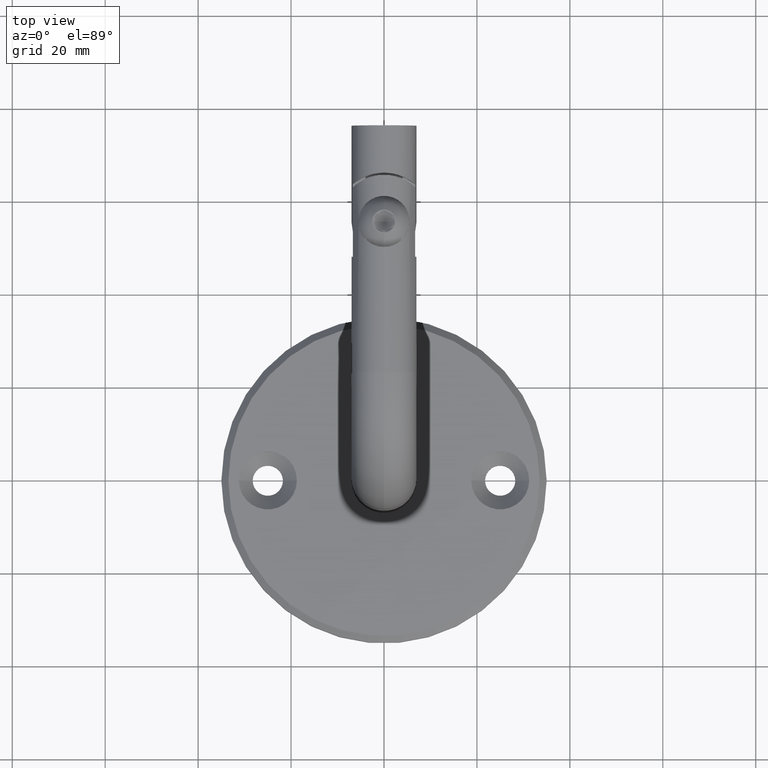
[diagram: clean part render]
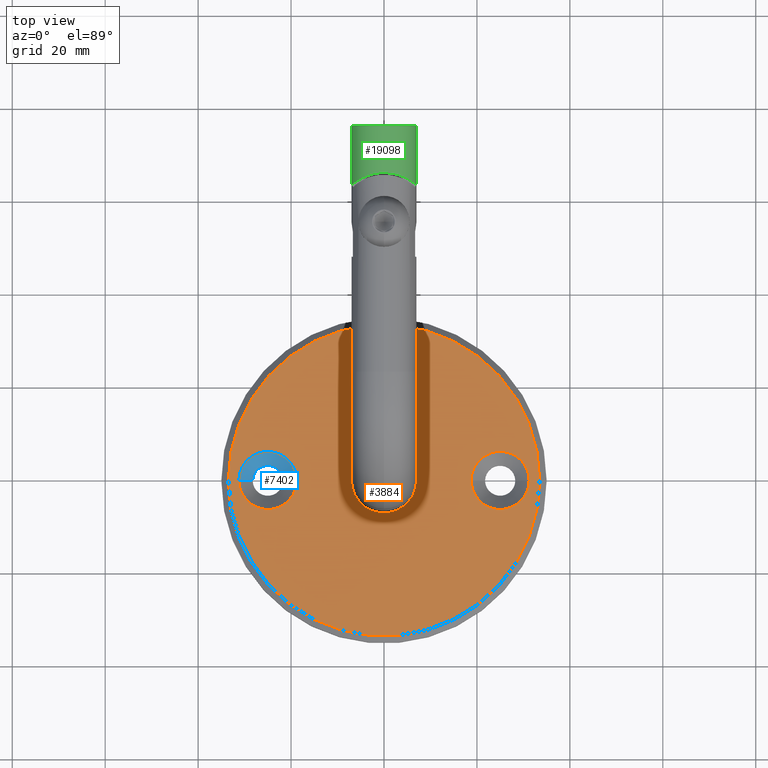
[diagram: same view with three faces highlighted in distinct colors, each labeled with its STEP entity id]
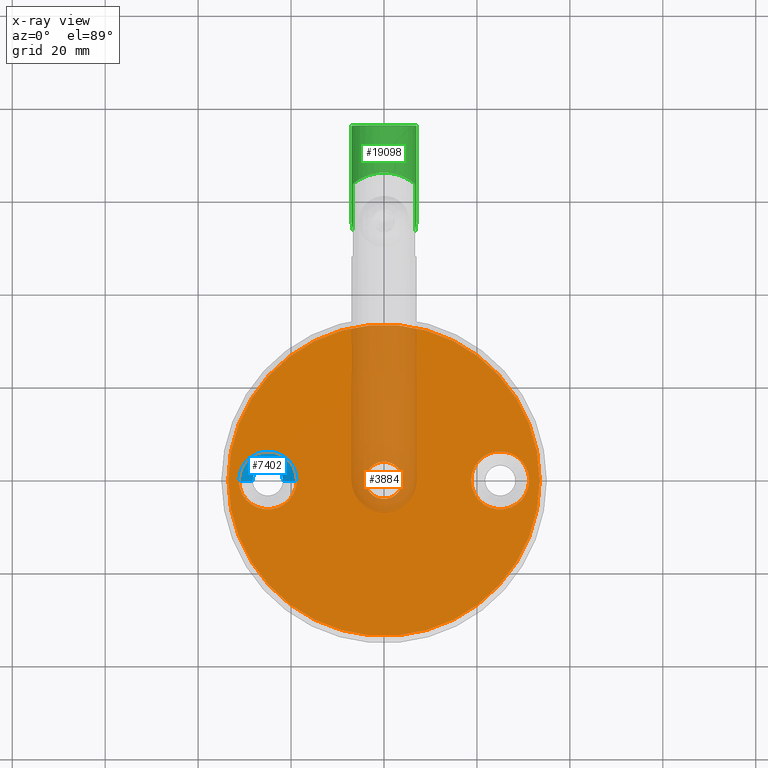
[diagram: x-ray of the same camera — body ghosted, the three highlighted faces saturated]
A machine part, top view with three faces highlighted in distinct colors.
The next image is the same camera in x-ray (body ghosted, the three faces saturated) — at least one of them is partly hidden behind the body in this view.
Their STEP definitions:

[orange] entity #3884 — the highlighted planar face has unit normal (0, 0, 1).
#358 = AXIS2_PLACEMENT_3D ( 'NONE', #1603, #15291, #8457 ) ;
#448 = CIRCLE ( 'NONE', #4276, 6.249999999999998224 ) ;
#696 = AXIS2_PLACEMENT_3D ( 'NONE', #17294, #13869, #2037 ) ;
#1045 = CIRCLE ( 'NONE', #18586, 6.249999999999998224 ) ;
#1603 = CARTESIAN_POINT ( 'NONE',  ( 0.000000000000000000, 0.000000000000000000, 6.000000000000000000 ) ) ;
#1839 = ORIENTED_EDGE ( 'NONE', *, *, #15695, .F. ) ;
#1974 = FACE_BOUND ( 'NONE', #14864, .T. ) ;
#1988 = DIRECTION ( 'NONE',  ( 0.000000000000000000, 0.000000000000000000, 1.000000000000000000 ) ) ;
#2037 = DIRECTION ( 'NONE',  ( 1.000000000000000000, 0.000000000000000000, 0.000000000000000000 ) ) ;
#2438 = AXIS2_PLACEMENT_3D ( 'NONE', #12329, #1988, #5414 ) ;
#2811 = VERTEX_POINT ( 'NONE', #10345 ) ;
#2853 = VERTEX_POINT ( 'NONE', #13855 ) ;
#3472 = DIRECTION ( 'NONE',  ( 1.000000000000000000, 0.000000000000000000, -0.000000000000000000 ) ) ;
#3579 = EDGE_LOOP ( 'NONE', ( #19292, #22186 ) ) ;
#3712 = EDGE_CURVE ( 'NONE', #2811, #6515, #11890, .T. ) ;
#3810 = CIRCLE ( 'NONE', #8485, 3.999999999999998224 ) ;
#3884 = ADVANCED_FACE ( 'NONE', ( #6758, #9726, #10811, #1974 ), #8456, .T. ) ;
#4015 = EDGE_CURVE ( 'NONE', #16724, #19970, #3810, .T. ) ;
#4276 = AXIS2_PLACEMENT_3D ( 'NONE', #14922, #16630, #10213 ) ;
#4778 = CARTESIAN_POINT ( 'NONE',  ( -3.999999999999998224, 0.000000000000000000, 5.999999999999999112 ) ) ;
#4803 = CARTESIAN_POINT ( 'NONE',  ( 0.000000000000000000, 0.000000000000000000, 5.999999999999999112 ) ) ;
#4813 = CIRCLE ( 'NONE', #358, 33.50000000000001421 ) ;
#5063 = DIRECTION ( 'NONE',  ( -1.000000000000000000, 0.000000000000000000, 0.000000000000000000 ) ) ;
#5071 = AXIS2_PLACEMENT_3D ( 'NONE', #16867, #6593, #22143 ) ;
#5414 = DIRECTION ( 'NONE',  ( 1.000000000000000000, 0.000000000000000000, 0.000000000000000000 ) ) ;
#6000 = EDGE_CURVE ( 'NONE', #19970, #16724, #15038, .T. ) ;
#6083 = ORIENTED_EDGE ( 'NONE', *, *, #3712, .F. ) ;
#6515 = VERTEX_POINT ( 'NONE', #17179 ) ;
#6593 = DIRECTION ( 'NONE',  ( -0.000000000000000000, -0.000000000000000000, 1.000000000000000000 ) ) ;
#6758 = FACE_OUTER_BOUND ( 'NONE', #3579, .T. ) ;
#7319 = CARTESIAN_POINT ( 'NONE',  ( 3.999999999999998224, 4.898587196589410857E-16, 5.999999999999999112 ) ) ;
#7382 = EDGE_LOOP ( 'NONE', ( #20491, #6083 ) ) ;
#7949 = CIRCLE ( 'NONE', #696, 6.249999999999998224 ) ;
#8380 = EDGE_CURVE ( 'NONE', #16034, #10370, #4813, .T. ) ;
#8456 = PLANE ( 'NONE',  #16838 ) ;
#8457 = DIRECTION ( 'NONE',  ( 1.000000000000000000, 0.000000000000000000, 0.000000000000000000 ) ) ;
#8485 = AXIS2_PLACEMENT_3D ( 'NONE', #4803, #16770, #18553 ) ;
#9726 = FACE_BOUND ( 'NONE', #21399, .T. ) ;
#10213 = DIRECTION ( 'NONE',  ( 1.000000000000000000, 0.000000000000000000, 0.000000000000000000 ) ) ;
#10345 = CARTESIAN_POINT ( 'NONE',  ( -31.25000000000000000, 7.654042494670955634E-16, 6.000000000000000000 ) ) ;
#10370 = VERTEX_POINT ( 'NONE', #12747 ) ;
#10811 = FACE_BOUND ( 'NONE', #7382, .T. ) ;
#11438 = EDGE_CURVE ( 'NONE', #2853, #19465, #1045, .T. ) ;
#11890 = CIRCLE ( 'NONE', #5071, 6.249999999999998224 ) ;
#12299 = DIRECTION ( 'NONE',  ( 1.000000000000000000, 0.000000000000000000, 0.000000000000000000 ) ) ;
#12329 = CARTESIAN_POINT ( 'NONE',  ( 0.000000000000000000, 0.000000000000000000, 6.000000000000000000 ) ) ;
#12551 = AXIS2_PLACEMENT_3D ( 'NONE', #17420, #15307, #5063 ) ;
#12747 = CARTESIAN_POINT ( 'NONE',  ( 33.50000000000001421, 4.194415287079685135E-15, 6.000000000000000000 ) ) ;
#13650 = DIRECTION ( 'NONE',  ( 0.000000000000000000, 0.000000000000000000, 1.000000000000000000 ) ) ;
#13855 = CARTESIAN_POINT ( 'NONE',  ( 18.75000000000000355, 7.654042494670955634E-16, 6.000000000000000000 ) ) ;
#13869 = DIRECTION ( 'NONE',  ( -0.000000000000000000, -0.000000000000000000, 1.000000000000000000 ) ) ;
#13930 = EDGE_CURVE ( 'NONE', #6515, #2811, #448, .T. ) ;
#13939 = CARTESIAN_POINT ( 'NONE',  ( 25.00000000000000000, 0.000000000000000000, 6.000000000000000000 ) ) ;
#14740 = ORIENTED_EDGE ( 'NONE', *, *, #6000, .T. ) ;
#14864 = EDGE_LOOP ( 'NONE', ( #1839, #18241 ) ) ;
#14922 = CARTESIAN_POINT ( 'NONE',  ( -25.00000000000000000, 0.000000000000000000, 6.000000000000000000 ) ) ;
#14958 = CARTESIAN_POINT ( 'NONE',  ( -33.50000000000001421, 0.000000000000000000, 6.000000000000000000 ) ) ;
#15038 = CIRCLE ( 'NONE', #12551, 3.999999999999998224 ) ;
#15291 = DIRECTION ( 'NONE',  ( 0.000000000000000000, 0.000000000000000000, 1.000000000000000000 ) ) ;
#15307 = DIRECTION ( 'NONE',  ( -0.000000000000000000, -0.000000000000000000, -1.000000000000000000 ) ) ;
#15695 = EDGE_CURVE ( 'NONE', #19465, #2853, #7949, .T. ) ;
#15799 = CARTESIAN_POINT ( 'NONE',  ( 0.000000000000000000, 0.000000000000000000, 6.000000000000000000 ) ) ;
#16034 = VERTEX_POINT ( 'NONE', #14958 ) ;
#16630 = DIRECTION ( 'NONE',  ( -0.000000000000000000, -0.000000000000000000, 1.000000000000000000 ) ) ;
#16724 = VERTEX_POINT ( 'NONE', #7319 ) ;
#16765 = ORIENTED_EDGE ( 'NONE', *, *, #4015, .T. ) ;
#16770 = DIRECTION ( 'NONE',  ( -0.000000000000000000, -0.000000000000000000, -1.000000000000000000 ) ) ;
#16838 = AXIS2_PLACEMENT_3D ( 'NONE', #15799, #13650, #3472 ) ;
#16867 = CARTESIAN_POINT ( 'NONE',  ( -25.00000000000000000, 0.000000000000000000, 6.000000000000000000 ) ) ;
#17179 = CARTESIAN_POINT ( 'NONE',  ( -18.75000000000000355, 0.000000000000000000, 6.000000000000000000 ) ) ;
#17294 = CARTESIAN_POINT ( 'NONE',  ( 25.00000000000000000, 0.000000000000000000, 6.000000000000000000 ) ) ;
#17420 = CARTESIAN_POINT ( 'NONE',  ( 0.000000000000000000, 0.000000000000000000, 5.999999999999999112 ) ) ;
#18241 = ORIENTED_EDGE ( 'NONE', *, *, #11438, .F. ) ;
#18272 = EDGE_CURVE ( 'NONE', #10370, #16034, #20195, .T. ) ;
#18553 = DIRECTION ( 'NONE',  ( -1.000000000000000000, 0.000000000000000000, 0.000000000000000000 ) ) ;
#18586 = AXIS2_PLACEMENT_3D ( 'NONE', #13939, #19286, #12299 ) ;
#19286 = DIRECTION ( 'NONE',  ( -0.000000000000000000, -0.000000000000000000, 1.000000000000000000 ) ) ;
#19292 = ORIENTED_EDGE ( 'NONE', *, *, #8380, .T. ) ;
#19465 = VERTEX_POINT ( 'NONE', #20180 ) ;
#19970 = VERTEX_POINT ( 'NONE', #4778 ) ;
#20180 = CARTESIAN_POINT ( 'NONE',  ( 31.25000000000000000, 0.000000000000000000, 6.000000000000000000 ) ) ;
#20195 = CIRCLE ( 'NONE', #2438, 33.50000000000001421 ) ;
#20491 = ORIENTED_EDGE ( 'NONE', *, *, #13930, .F. ) ;
#21399 = EDGE_LOOP ( 'NONE', ( #14740, #16765 ) ) ;
#22143 = DIRECTION ( 'NONE',  ( 1.000000000000000000, 0.000000000000000000, 0.000000000000000000 ) ) ;
#22186 = ORIENTED_EDGE ( 'NONE', *, *, #18272, .T. ) ;

[blue] entity #7402 — the highlighted conical surface has half-angle 45 deg.
#476 = VERTEX_POINT ( 'NONE', #8496 ) ;
#1210 = DIRECTION ( 'NONE',  ( 1.000000000000000000, 0.000000000000000000, 0.000000000000000000 ) ) ;
#1665 = AXIS2_PLACEMENT_3D ( 'NONE', #11402, #18551, #1210 ) ;
#2018 = CIRCLE ( 'NONE', #17057, 6.249999999999998224 ) ;
#2270 = DIRECTION ( 'NONE',  ( -0.000000000000000000, -0.000000000000000000, 1.000000000000000000 ) ) ;
#3463 = ORIENTED_EDGE ( 'NONE', *, *, #14388, .F. ) ;
#4313 = DIRECTION ( 'NONE',  ( -0.7071067811865474617, 8.659560562354931626E-17, 0.7071067811865475727 ) ) ;
#4510 = EDGE_CURVE ( 'NONE', #5819, #18866, #17468, .T. ) ;
#5687 = ORIENTED_EDGE ( 'NONE', *, *, #18376, .T. ) ;
#5819 = VERTEX_POINT ( 'NONE', #17678 ) ;
#7395 = CIRCLE ( 'NONE', #15043, 3.249999999999999556 ) ;
#7402 = ADVANCED_FACE ( 'NONE', ( #9663 ), #7776, .F. ) ;
#7418 = DIRECTION ( 'NONE',  ( 1.000000000000000000, 0.000000000000000000, 0.000000000000000000 ) ) ;
#7575 = CARTESIAN_POINT ( 'NONE',  ( -25.00000000000000000, 0.000000000000000000, 5.500000000000000888 ) ) ;
#7776 = CONICAL_SURFACE ( 'NONE', #1665, 6.249999999999998224, 0.7853981633974482790 ) ;
#8496 = CARTESIAN_POINT ( 'NONE',  ( -28.25000000000000000, 3.980102097228897245E-16, 2.500000000000000888 ) ) ;
#9276 = VERTEX_POINT ( 'NONE', #15251 ) ;
#9663 = FACE_OUTER_BOUND ( 'NONE', #14589, .T. ) ;
#10190 = DIRECTION ( 'NONE',  ( -0.000000000000000000, -0.000000000000000000, 1.000000000000000000 ) ) ;
#10407 = LINE ( 'NONE', #19833, #18931 ) ;
#10720 = CARTESIAN_POINT ( 'NONE',  ( -18.75000000000000355, 0.000000000000000000, 5.500000000000000888 ) ) ;
#11402 = CARTESIAN_POINT ( 'NONE',  ( -25.00000000000000000, 0.000000000000000000, 5.500000000000000888 ) ) ;
#12150 = VECTOR ( 'NONE', #13928, 1000.000000000000000 ) ;
#12253 = ORIENTED_EDGE ( 'NONE', *, *, #4510, .T. ) ;
#13615 = EDGE_CURVE ( 'NONE', #476, #9276, #10407, .T. ) ;
#13928 = DIRECTION ( 'NONE',  ( 0.7071067811865474617, 0.000000000000000000, 0.7071067811865475727 ) ) ;
#14388 = EDGE_CURVE ( 'NONE', #5819, #476, #7395, .T. ) ;
#14589 = EDGE_LOOP ( 'NONE', ( #14907, #3463, #12253, #5687 ) ) ;
#14907 = ORIENTED_EDGE ( 'NONE', *, *, #13615, .F. ) ;
#15043 = AXIS2_PLACEMENT_3D ( 'NONE', #20397, #10190, #20633 ) ;
#15251 = CARTESIAN_POINT ( 'NONE',  ( -31.25000000000000000, 7.654042494670955634E-16, 5.500000000000000888 ) ) ;
#16228 = CARTESIAN_POINT ( 'NONE',  ( -18.75000000000000355, 0.000000000000000000, 5.500000000000000888 ) ) ;
#17057 = AXIS2_PLACEMENT_3D ( 'NONE', #7575, #2270, #7418 ) ;
#17468 = LINE ( 'NONE', #10720, #12150 ) ;
#17678 = CARTESIAN_POINT ( 'NONE',  ( -21.75000000000000355, 0.000000000000000000, 2.500000000000000888 ) ) ;
#18376 = EDGE_CURVE ( 'NONE', #18866, #9276, #2018, .T. ) ;
#18551 = DIRECTION ( 'NONE',  ( -0.000000000000000000, -0.000000000000000000, 1.000000000000000000 ) ) ;
#18866 = VERTEX_POINT ( 'NONE', #16228 ) ;
#18931 = VECTOR ( 'NONE', #4313, 1000.000000000000000 ) ;
#19833 = CARTESIAN_POINT ( 'NONE',  ( -31.25000000000000000, 7.654042494670955634E-16, 5.500000000000000888 ) ) ;
#20397 = CARTESIAN_POINT ( 'NONE',  ( -25.00000000000000000, 0.000000000000000000, 2.500000000000000888 ) ) ;
#20633 = DIRECTION ( 'NONE',  ( 1.000000000000000000, 0.000000000000000000, 0.000000000000000000 ) ) ;

[green] entity #19098 — the highlighted cylindrical surface (edge-blend (fillet) strip) has radius 7 mm, axis along (-0, -1, 0).
#70 = CARTESIAN_POINT ( 'NONE',  ( 6.836534901959993249, 2.561624352504828117, 1.552742132354663740 ) ) ;
#113 = CARTESIAN_POINT ( 'NONE',  ( 1.999999999999999112, 0.2477472107017559266, 6.708203932499369415 ) ) ;
#790 = VECTOR ( 'NONE', #9873, 1000.000000000000000 ) ;
#834 = CIRCLE ( 'NONE', #17717, 7.000000000000000000 ) ;
#867 = AXIS2_PLACEMENT_3D ( 'NONE', #3769, #7194, #8904 ) ;
#922 = CARTESIAN_POINT ( 'NONE',  ( 1.349818663702004873, -9.179818663702002723, 6.902050554587897402 ) ) ;
#1140 = EDGE_CURVE ( 'NONE', #20781, #10436, #13040, .T. ) ;
#1313 = ORIENTED_EDGE ( 'NONE', *, *, #5253, .F. ) ;
#1687 = DIRECTION ( 'NONE',  ( -0.000000000000000000, 1.000000000000000000, -0.000000000000000000 ) ) ;
#1882 = LINE ( 'NONE', #14953, #790 ) ;
#1960 = CARTESIAN_POINT ( 'NONE',  ( 1.349818663702002874, -9.179818663702002723, -6.902050554587896514 ) ) ;
#2017 = CARTESIAN_POINT ( 'NONE',  ( 8.572527594031473190E-16, 12.86999999999999922, 7.000000000000000000 ) ) ;
#2102 = CARTESIAN_POINT ( 'NONE',  ( 1.999999999999997335, 0.2477472107017559266, -6.708203932499369415 ) ) ;
#2314 = CARTESIAN_POINT ( 'NONE',  ( 2.714574385463742079, 0.4478734137668015647, -6.462745367829185739 ) ) ;
#2648 = CARTESIAN_POINT ( 'NONE',  ( 2.000000000000000888, -9.829999999999998295, 6.708203932499366751 ) ) ;
#2789 = CARTESIAN_POINT ( 'NONE',  ( 0.6784631773098537266, -8.508463177309851133, 6.999999999999998224 ) ) ;
#3325 = CYLINDRICAL_SURFACE ( 'NONE', #867, 7.000000000000000000 ) ;
#3418 = ORIENTED_EDGE ( 'NONE', *, *, #21362, .F. ) ;
#3458 = CARTESIAN_POINT ( 'NONE',  ( 5.340699643159996235, 1.643119646176407933, 4.540060636839963415 ) ) ;
#3482 = CARTESIAN_POINT ( 'NONE',  ( 1.084202172485504434E-15, -7.830000000000000071, 7.000000000000000000 ) ) ;
#3534 = CARTESIAN_POINT ( 'NONE',  ( 6.998897834509340221, 2.669265224558422744, 0.4069292137963699818 ) ) ;
#3614 = VERTEX_POINT ( 'NONE', #2648 ) ;
#3673 = CARTESIAN_POINT ( 'NONE',  ( 6.842415717056732127, 2.565498978793212537, -1.526822293499674688 ) ) ;
#3769 = CARTESIAN_POINT ( 'NONE',  ( 0.000000000000000000, 12.86999999999999922, 0.000000000000000000 ) ) ;
#4045 = CARTESIAN_POINT ( 'NONE',  ( 6.342393173799404593, 2.243357394166351604, -2.968158163910614267 ) ) ;
#4414 = FACE_OUTER_BOUND ( 'NONE', #18149, .T. ) ;
#4424 = CARTESIAN_POINT ( 'NONE',  ( -1.084202172485504434E-15, -7.830000000000000071, -7.000000000000000000 ) ) ;
#4617 = ORIENTED_EDGE ( 'NONE', *, *, #6712, .F. ) ;
#5175 = CARTESIAN_POINT ( 'NONE',  ( 5.786992045166829968, 1.901711056291605528, 3.955495712778469120 ) ) ;
#5253 = EDGE_CURVE ( 'NONE', #3614, #21800, #12363, .T. ) ;
#5450 = CARTESIAN_POINT ( 'NONE',  ( 3.378598239792875102, 0.6887557909628390096, -6.141747773857365367 ) ) ;
#6712 = EDGE_CURVE ( 'NONE', #15179, #19600, #834, .T. ) ;
#6797 = CARTESIAN_POINT ( 'NONE',  ( 2.366568476869568283, 0.3385072870715452598, 6.598914328140849328 ) ) ;
#6910 = CARTESIAN_POINT ( 'NONE',  ( 0.000000000000000000, 12.86999999999999922, 0.000000000000000000 ) ) ;
#7024 = CARTESIAN_POINT ( 'NONE',  ( 4.574524191117702365, 1.232375739194369269, 5.310830353872763254 ) ) ;
#7194 = DIRECTION ( 'NONE',  ( -0.000000000000000000, -1.000000000000000000, -0.000000000000000000 ) ) ;
#7861 = CARTESIAN_POINT ( 'NONE',  ( 1.084202172485504434E-15, -7.830000000000000071, 7.000000000000000000 ) ) ;
#8521 = CARTESIAN_POINT ( 'NONE',  ( 3.690207271789666787, 0.8184610654100887839, 5.959556859248444916 ) ) ;
#8600 = CARTESIAN_POINT ( 'NONE',  ( 6.340955651380307145, 2.241678437187309303, 2.988258123872796990 ) ) ;
#8709 = EDGE_CURVE ( 'NONE', #19600, #20781, #1882, .T. ) ;
#8744 = CARTESIAN_POINT ( 'NONE',  ( 7.001048272548957563, 2.670698846852196606, -0.3680833715066522127 ) ) ;
#8815 = CARTESIAN_POINT ( 'NONE',  ( 4.600603523304213738, 1.232378279580378377, -5.326804861503374511 ) ) ;
#8882 = CARTESIAN_POINT ( 'NONE',  ( 5.996326991454271393, 2.028337867128217287, -3.630895157663146300 ) ) ;
#8904 = DIRECTION ( 'NONE',  ( 0.000000000000000000, 0.000000000000000000, -1.000000000000000000 ) ) ;
#9113 = CARTESIAN_POINT ( 'NONE',  ( 6.260428293652173792, 2.191885274161915920, -3.137175774265054340 ) ) ;
#9170 = LINE ( 'NONE', #20432, #11084 ) ;
#9446 = CARTESIAN_POINT ( 'NONE',  ( 2.000000000000000888, -9.829999999999998295, 6.708203932499366751 ) ) ;
#9731 = VECTOR ( 'NONE', #11385, 1000.000000000000000 ) ;
#9750 = EDGE_CURVE ( 'NONE', #17823, #3614, #18741, .T. ) ;
#9824 = ORIENTED_EDGE ( 'NONE', *, *, #21057, .T. ) ;
#9873 = DIRECTION ( 'NONE',  ( -0.000000000000000000, -1.000000000000000000, -0.000000000000000000 ) ) ;
#10098 = ORIENTED_EDGE ( 'NONE', *, *, #9750, .F. ) ;
#10392 = DIRECTION ( 'NONE',  ( 0.000000000000000000, 1.000000000000000000, 0.000000000000000000 ) ) ;
#10436 = VERTEX_POINT ( 'NONE', #20102 ) ;
#10501 = CARTESIAN_POINT ( 'NONE',  ( -1.084202172485504434E-15, -7.830000000000000071, -7.000000000000000000 ) ) ;
#10724 = CARTESIAN_POINT ( 'NONE',  ( 6.563210585580057099, 2.383888155024717292, -2.441483628679070872 ) ) ;
#11084 = VECTOR ( 'NONE', #1687, 1000.000000000000000 ) ;
#11385 = DIRECTION ( 'NONE',  ( -0.000000000000000000, -1.000000000000000000, -0.000000000000000000 ) ) ;
#11505 = B_SPLINE_CURVE_WITH_KNOTS ( 'NONE', 3,
 ( #13931, #6797, #17286, #18772, #8521, #13863, #7024, #13709, #3458, #5175, #15422, #8600, #18836, #20566, #70, #13784, #3534, #8744, #15494, #3673, #17215, #10724, #15779, #4045, #9113, #8882, #12584, #19282, #8815, #17578, #5450, #2314, #14294, #2102 ),
 .UNSPECIFIED., .F., .F.,
 ( 4, 2, 2, 2, 2, 2, 2, 2, 2, 2, 2, 2, 2, 2, 2, 2, 4 ),
 ( 3.644999986305748565E-18, 0.001159692097011937473, 0.002319384194023871044, 0.003479076291035805048, 0.004638768388047738618, 0.005798460485059672188, 0.006958152582071606626, 0.008117844679083540196, 0.009277536776095473767, 0.01043722887310740734, 0.01159692097011934091, 0.01217676701862530769, 0.01275661306713127448, 0.01391630516414320978, 0.01623568935816707692, 0.01739538145517901049, 0.01855507355219094059 ),
 .UNSPECIFIED. ) ;
#12119 = DIRECTION ( 'NONE',  ( 0.000000000000000000, 0.000000000000000000, 1.000000000000000000 ) ) ;
#12363 =( BOUNDED_CURVE ( )  B_SPLINE_CURVE ( 3, ( #9446, #922, #2789, #7861 ),
 .UNSPECIFIED., .F., .T. ) 
 B_SPLINE_CURVE_WITH_KNOTS ( ( 4, 4 ),
 ( 1.281044625358849220, 1.570796326794896558 ),
 .UNSPECIFIED. ) 
 CURVE ( )  GEOMETRIC_REPRESENTATION_ITEM ( )  RATIONAL_B_SPLINE_CURVE ( ( 1.000000000000000000, 0.9930158912520661296, 0.9930158912520661296, 1.000000000000000000 ) ) 
 REPRESENTATION_ITEM ( '' )  );
#12584 = CARTESIAN_POINT ( 'NONE',  ( 5.796133557264199432, 1.907134278542904182, -3.942348315711392992 ) ) ;
#12699 = DIRECTION ( 'NONE',  ( 0.000000000000000000, -1.000000000000000000, 0.000000000000000000 ) ) ;
#12775 = CARTESIAN_POINT ( 'NONE',  ( 2.000000000000000888, -14.83000000000000007, 6.708203932499366751 ) ) ;
#13040 =( BOUNDED_CURVE ( )  B_SPLINE_CURVE ( 3, ( #10501, #15419, #1960, #20645 ),
 .UNSPECIFIED., .F., .T. ) 
 B_SPLINE_CURVE_WITH_KNOTS ( ( 4, 4 ),
 ( 4.712388980384689674, 5.002140681820737456 ),
 .UNSPECIFIED. ) 
 CURVE ( )  GEOMETRIC_REPRESENTATION_ITEM ( )  RATIONAL_B_SPLINE_CURVE ( ( 1.000000000000000000, 0.9930158912520659076, 0.9930158912520659076, 1.000000000000000000 ) ) 
 REPRESENTATION_ITEM ( '' )  );
#13709 = CARTESIAN_POINT ( 'NONE',  ( 5.098225568087496384, 1.507680997245446575, 4.810331244273753803 ) ) ;
#13784 = CARTESIAN_POINT ( 'NONE',  ( 6.965875584859531955, 2.647168982201080656, 0.7910720141455183096 ) ) ;
#13863 = CARTESIAN_POINT ( 'NONE',  ( 4.291568075589164977, 1.091648145861893626, 5.542237014055645616 ) ) ;
#13931 = CARTESIAN_POINT ( 'NONE',  ( 1.999999999999999112, 0.2477472107017559266, 6.708203932499369415 ) ) ;
#14294 = CARTESIAN_POINT ( 'NONE',  ( 2.366925258247755792, 0.3385956239231150411, -6.598807956485547521 ) ) ;
#14953 = CARTESIAN_POINT ( 'NONE',  ( 0.000000000000000000, 12.86999999999999922, -7.000000000000000000 ) ) ;
#15080 = LINE ( 'NONE', #18243, #9731 ) ;
#15179 = VERTEX_POINT ( 'NONE', #2017 ) ;
#15419 = CARTESIAN_POINT ( 'NONE',  ( 0.6784631773098510621, -8.508463177309851133, -6.999999999999997335 ) ) ;
#15422 = CARTESIAN_POINT ( 'NONE',  ( 5.989893732107817392, 2.024431231241937912, 3.641233069403698508 ) ) ;
#15439 = VERTEX_POINT ( 'NONE', #20679 ) ;
#15494 = CARTESIAN_POINT ( 'NONE',  ( 6.969043535917538890, 2.649280222352094594, -0.7630670713892504509 ) ) ;
#15779 = CARTESIAN_POINT ( 'NONE',  ( 6.493698171597640290, 2.339301547469185394, -2.620648414655420311 ) ) ;
#17215 = CARTESIAN_POINT ( 'NONE',  ( 6.748486738297990506, 2.503594992437064626, -1.898480640440701084 ) ) ;
#17286 = CARTESIAN_POINT ( 'NONE',  ( 2.713400598068922420, 0.4475252976790306536, 6.463165776157996589 ) ) ;
#17578 = CARTESIAN_POINT ( 'NONE',  ( 3.695369663660658777, 0.8206383450584877615, -5.956453957825102563 ) ) ;
#17717 = AXIS2_PLACEMENT_3D ( 'NONE', #6910, #10392, #12119 ) ;
#17775 = ORIENTED_EDGE ( 'NONE', *, *, #8709, .F. ) ;
#17823 = VERTEX_POINT ( 'NONE', #113 ) ;
#17935 = VECTOR ( 'NONE', #12699, 1000.000000000000000 ) ;
#18149 = EDGE_LOOP ( 'NONE', ( #4617, #21673, #1313, #10098, #9824, #3418, #19162, #17775 ) ) ;
#18243 = CARTESIAN_POINT ( 'NONE',  ( 8.572527594031473190E-16, 12.86999999999999922, 7.000000000000000000 ) ) ;
#18741 = LINE ( 'NONE', #12775, #17935 ) ;
#18772 = CARTESIAN_POINT ( 'NONE',  ( 3.375247361192842188, 0.6874630611089115328, 6.143513645013049640 ) ) ;
#18836 = CARTESIAN_POINT ( 'NONE',  ( 6.491294757377503721, 2.337495894761200343, 2.646943327226386700 ) ) ;
#19098 = ADVANCED_FACE ( 'NONE', ( #4414 ), #3325, .T. ) ;
#19162 = ORIENTED_EDGE ( 'NONE', *, *, #1140, .F. ) ;
#19282 = CARTESIAN_POINT ( 'NONE',  ( 5.123306368496068686, 1.516911100700421011, -4.827093295004150519 ) ) ;
#19428 = CARTESIAN_POINT ( 'NONE',  ( 0.000000000000000000, 12.86999999999999922, -7.000000000000000000 ) ) ;
#19600 = VERTEX_POINT ( 'NONE', #19428 ) ;
#20102 = CARTESIAN_POINT ( 'NONE',  ( 1.999999999999999112, -9.829999999999998295, -6.708203932499369415 ) ) ;
#20432 = CARTESIAN_POINT ( 'NONE',  ( 1.999999999999999112, -14.83000000000000007, -6.708203932499366751 ) ) ;
#20566 = CARTESIAN_POINT ( 'NONE',  ( 6.738828323587275015, 2.497287752242176140, 1.931685644695555482 ) ) ;
#20645 = CARTESIAN_POINT ( 'NONE',  ( 1.999999999999999112, -9.829999999999998295, -6.708203932499369415 ) ) ;
#20679 = CARTESIAN_POINT ( 'NONE',  ( 1.999999999999997335, 0.2477472107017559266, -6.708203932499369415 ) ) ;
#20781 = VERTEX_POINT ( 'NONE', #4424 ) ;
#21057 = EDGE_CURVE ( 'NONE', #17823, #15439, #11505, .T. ) ;
#21291 = EDGE_CURVE ( 'NONE', #15179, #21800, #15080, .T. ) ;
#21362 = EDGE_CURVE ( 'NONE', #10436, #15439, #9170, .T. ) ;
#21673 = ORIENTED_EDGE ( 'NONE', *, *, #21291, .T. ) ;
#21800 = VERTEX_POINT ( 'NONE', #3482 ) ;